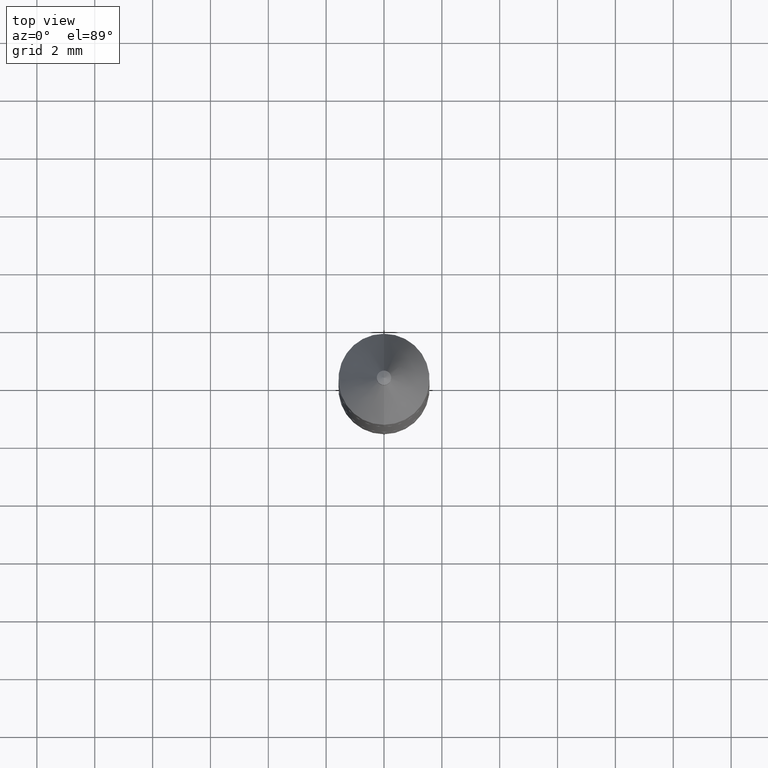
[diagram: clean part render]
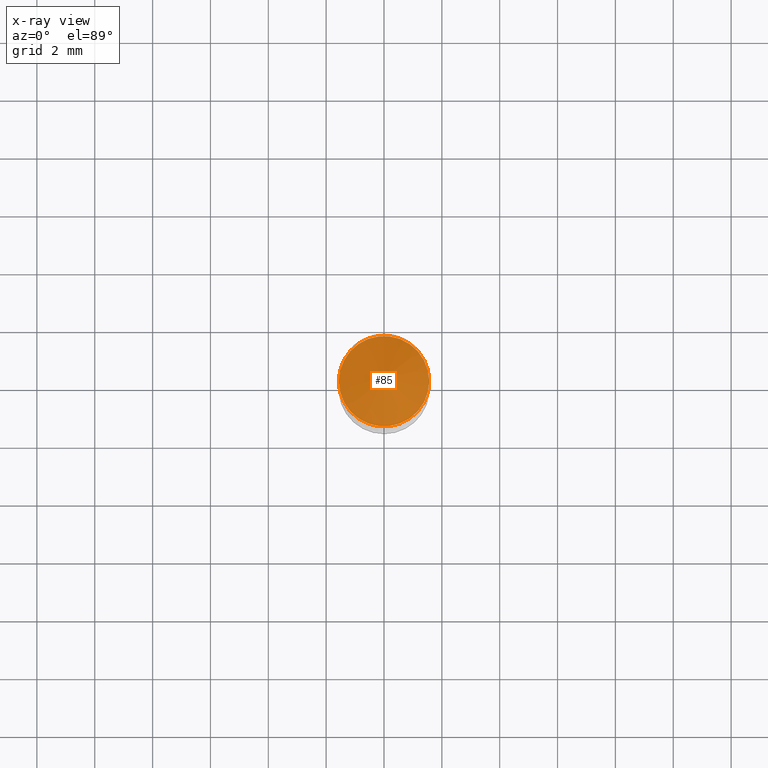
[diagram: x-ray — body ghosted, one internal face saturated and labeled with its STEP entity id]
A machine part, top view, then the same camera in x-ray: the body is ghosted and one INTERNAL B-rep face — a face not visible from any outside direction — is saturated and labeled: STEP entity #85.
In plain terms, the highlighted planar face has unit normal (-0, 0, 1).
Its self-contained STEP definition (entity closure, byte-faithful):
#21 = CARTESIAN_POINT ( 'NONE',  ( -4.331536910541446311E-30, 8.518377166773612246E-16, 0.2104999999999999094 ) ) ;
#34 = DIRECTION ( 'NONE',  ( -2.438088387897960049E-29, 3.491481338843145188E-15, 1.000000000000000000 ) ) ;
#38 = AXIS2_PLACEMENT_3D ( 'NONE', #21, #34, #257 ) ;
#60 = CARTESIAN_POINT ( 'NONE',  ( 0.06150000000000004768, 3.055046171487760914E-16, 0.2104999999999999094 ) ) ;
#85 = ADVANCED_FACE ( 'NONE', ( #309 ), #525, .T. ) ;
#87 = CARTESIAN_POINT ( 'NONE',  ( -5.147711837019709795E-30, 7.349568218264817959E-16, 0.2104999999999999094 ) ) ;
#88 = DIRECTION ( 'NONE',  ( -2.445468806185136597E-29, 3.491481338843145583E-15, 1.000000000000000000 ) ) ;
#92 = CARTESIAN_POINT ( 'NONE',  ( -0.06150000000000004768, 1.157719702854163501E-15, 0.2104999999999999094 ) ) ;
#117 = EDGE_CURVE ( 'NONE', #452, #241, #227, .T. ) ;
#127 = AXIS2_PLACEMENT_3D ( 'NONE', #414, #88, #614 ) ;
#206 = EDGE_LOOP ( 'NONE', ( #594, #259 ) ) ;
#227 = CIRCLE ( 'NONE', #661, 0.06150000000000004768 ) ;
#241 = VERTEX_POINT ( 'NONE', #92 ) ;
#257 = DIRECTION ( 'NONE',  ( -1.000000000000000000, 6.982962677686265922E-15, -4.876176775795935793E-29 ) ) ;
#259 = ORIENTED_EDGE ( 'NONE', *, *, #517, .T. ) ;
#309 = FACE_OUTER_BOUND ( 'NONE', #206, .T. ) ;
#413 = DIRECTION ( 'NONE',  ( 1.000000000000000000, -6.982962677686265922E-15, 0.000000000000000000 ) ) ;
#414 = CARTESIAN_POINT ( 'NONE',  ( -5.147711837019709795E-30, 7.349568218264817959E-16, 0.2104999999999999094 ) ) ;
#452 = VERTEX_POINT ( 'NONE', #60 ) ;
#517 = EDGE_CURVE ( 'NONE', #241, #452, #630, .T. ) ;
#525 = PLANE ( 'NONE',  #38 ) ;
#594 = ORIENTED_EDGE ( 'NONE', *, *, #117, .T. ) ;
#614 = DIRECTION ( 'NONE',  ( 1.000000000000000000, -6.982962677686265922E-15, 0.000000000000000000 ) ) ;
#630 = CIRCLE ( 'NONE', #127, 0.06150000000000004768 ) ;
#661 = AXIS2_PLACEMENT_3D ( 'NONE', #87, #684, #413 ) ;
#684 = DIRECTION ( 'NONE',  ( -2.445468806185136597E-29, 3.491481338843145583E-15, 1.000000000000000000 ) ) ;